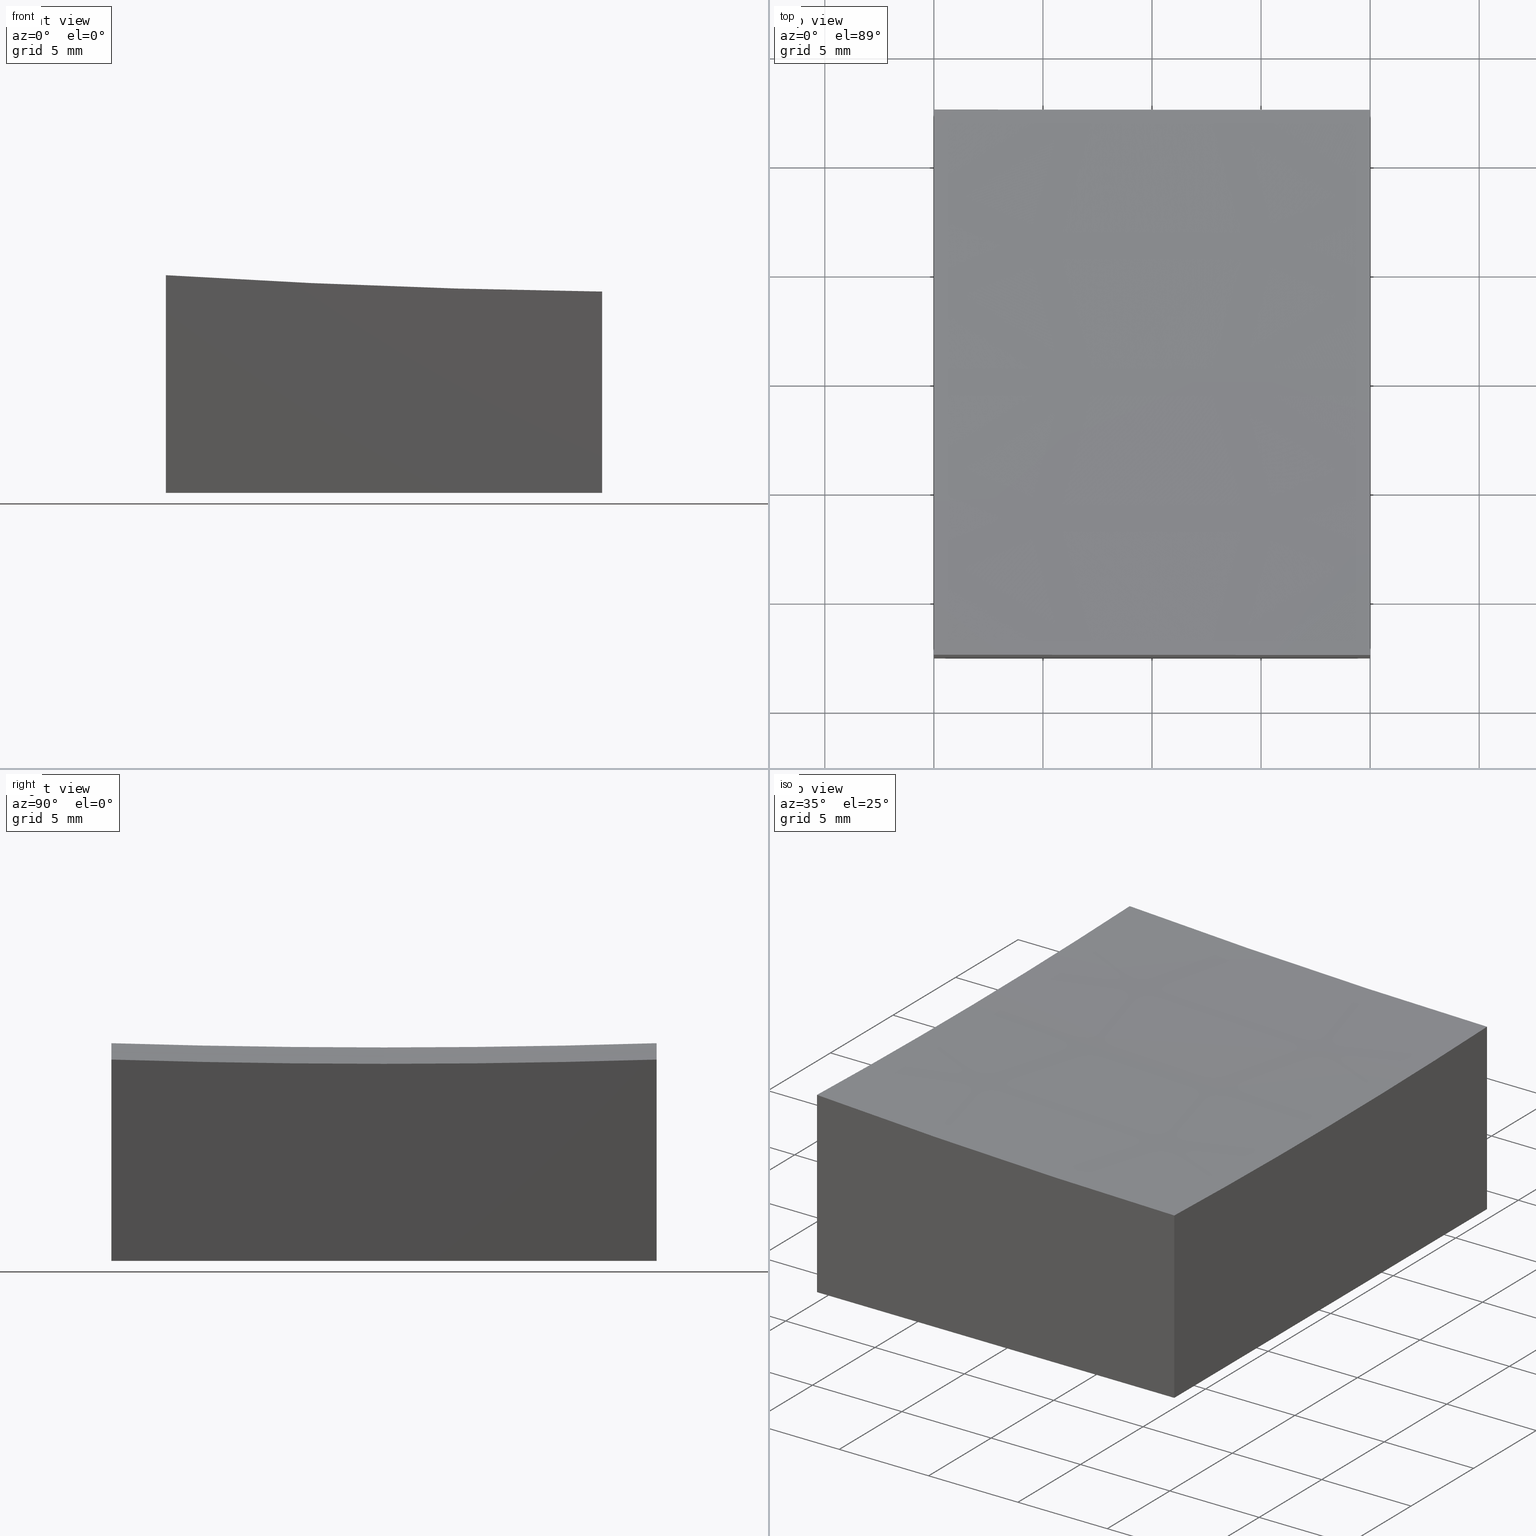
[diagram: canonical four-view strip — front | top / right | iso, engineering-drawing reading convention]
A machine part, canonical four-view strip (front | top / right | iso — engineering-drawing reading convention). The complete STEP part file that produces these views, byte-faithful:
ISO-10303-21;
HEADER;
FILE_DESCRIPTION (( 'STEP AP203' ),
    '1' );
FILE_NAME ('270647.step',
    '2024-12-24T02:22:16',
    ( '' ),
    ( '' ),
    'SwSTEP 2.0',
    'SolidWorks 2020',
    '' );
FILE_SCHEMA (( 'CONFIG_CONTROL_DESIGN' ));
ENDSEC;

DATA;
#1 = PLANE ( 'NONE',  #266 ) ;
#2 = CARTESIAN_POINT ( 'NONE',  ( 10.00000000000000178, 12.50000000000000000, 10.00000000000000000 ) ) ;
#3 = ORIENTED_EDGE ( 'NONE', *, *, #108, .T. ) ;
#4 = CARTESIAN_POINT ( 'NONE',  ( -9.999999999999996447, 0.000000000000000000, -0.2179855667827079735 ) ) ;
#5 = CC_DESIGN_APPROVAL ( #21, ( #133 ) ) ;
#6 = VERTEX_POINT ( 'NONE', #4 ) ;
#7 = AXIS2_PLACEMENT_3D ( 'NONE', #65, #240, #44 ) ;
#8 = PERSON ( 'δָ��', 'δָ��', 'δָ��', ('δָ��'), ('δָ��'), ('δָ��') ) ;
#9 = CC_DESIGN_PERSON_AND_ORGANIZATION_ASSIGNMENT ( #200, #33, ( #133 ) ) ;
#10 =( LENGTH_UNIT ( ) NAMED_UNIT ( * ) SI_UNIT ( .MILLI., .METRE. ) );
#11 = COORDINATED_UNIVERSAL_TIME_OFFSET ( 8, 0, .AHEAD. ) ;
#12 = CARTESIAN_POINT ( 'NONE',  ( 10.00000000000000178, 12.50000000000000000, -10.00000000000000000 ) ) ;
#13 = CALENDAR_DATE ( 2024, 24, 12 ) ;
#14 = APPROVAL_DATE_TIME ( #139, #28 ) ;
#15 = AXIS2_PLACEMENT_3D ( 'NONE', #214, #90, #47 ) ;
#16 = AXIS2_PLACEMENT_3D ( 'NONE', #237, #120, #207 ) ;
#17 = FACE_OUTER_BOUND ( 'NONE', #113, .T. ) ;
#18 = DIRECTION ( 'NONE',  ( 0.000000000000000000, 0.000000000000000000, 1.000000000000000000 ) ) ;
#19 = EDGE_CURVE ( 'NONE', #112, #48, #201, .T. ) ;
#20 = DIRECTION ( 'NONE',  ( -0.000000000000000000, -0.000000000000000000, -1.000000000000000000 ) ) ;
#21 = APPROVAL ( #100, 'δָ��' ) ;
#22 = DIRECTION ( 'NONE',  ( -1.000000000000000000, -1.735571129814823690E-16, 0.000000000000000000 ) ) ;
#23 = DIRECTION ( 'NONE',  ( 0.000000000000000000, -1.000000000000000000, 0.000000000000000000 ) ) ;
#24 = CARTESIAN_POINT ( 'NONE',  ( 10.00000000000000178, 0.000000000000000000, -0.9687487792014171095 ) ) ;
#25 = AXIS2_PLACEMENT_3D ( 'NONE', #235, #36, #66 ) ;
#26 = ORIENTED_EDGE ( 'NONE', *, *, #19, .T. ) ;
#27 = ORIENTED_EDGE ( 'NONE', *, *, #245, .F. ) ;
#28 = APPROVAL ( #121, 'δָ��' ) ;
#29 = VECTOR ( 'NONE', #84, 1000.000000000000000 ) ;
#30 = APPROVAL_PERSON_ORGANIZATION ( #78, #59, #53 ) ;
#31 = AXIS2_PLACEMENT_3D ( 'NONE', #92, #23, #238 ) ;
#32 = DIRECTION ( 'NONE',  ( -0.000000000000000000, -1.000000000000000000, -0.000000000000000000 ) ) ;
#33 = PERSON_AND_ORGANIZATION_ROLE ( 'classification_officer' ) ;
#34 = PERSON_AND_ORGANIZATION_ROLE ( 'design_owner' ) ;
#35 = CARTESIAN_POINT ( 'NONE',  ( 15.00000000000005151, 0.000000000000000000, 399.0000000000000000 ) ) ;
#36 = DIRECTION ( 'NONE',  ( -1.000000000000000000, 0.000000000000000000, 0.000000000000000000 ) ) ;
#37 = CC_DESIGN_PERSON_AND_ORGANIZATION_ASSIGNMENT ( #179, #99, ( #172 ) ) ;
#38 = AXIS2_PLACEMENT_3D ( 'NONE', #35, #40, #204 ) ;
#39 = DIRECTION ( 'NONE',  ( 0.000000000000000000, -0.000000000000000000, 1.000000000000000000 ) ) ;
#40 = DIRECTION ( 'NONE',  ( 0.000000000000000000, 1.000000000000000000, -0.000000000000000000 ) ) ;
#41 = DIRECTION ( 'NONE',  ( 1.000000000000000000, 0.000000000000000000, 0.000000000000000000 ) ) ;
#42 = ORIENTED_EDGE ( 'NONE', *, *, #267, .F. ) ;
#43 = DIRECTION ( 'NONE',  ( 0.000000000000000000, 0.000000000000000000, -1.000000000000000000 ) ) ;
#44 = DIRECTION ( 'NONE',  ( 0.000000000000000000, 0.000000000000000000, 1.000000000000000000 ) ) ;
#45 = AXIS2_PLACEMENT_3D ( 'NONE', #88, #39, #276 ) ;
#46 = ORIENTED_EDGE ( 'NONE', *, *, #94, .F. ) ;
#47 = DIRECTION ( 'NONE',  ( 1.000000000000000000, 1.735571129814823690E-16, 0.000000000000000000 ) ) ;
#48 = VERTEX_POINT ( 'NONE', #196 ) ;
#49 = EDGE_CURVE ( 'NONE', #6, #194, #228, .T. ) ;
#50 = LOCAL_TIME ( 10, 22, 16.00000000000000000, #11 ) ;
#51 = CLOSED_SHELL ( 'NONE', ( #152, #125, #70, #75, #105, #91, #221 ) ) ;
#52 = VECTOR ( 'NONE', #32, 1000.000000000000000 ) ;
#53 = APPROVAL_ROLE ( '' ) ;
#54 = CARTESIAN_POINT ( 'NONE',  ( -9.999999999999998224, -12.50000000000000355, -10.00000000000000000 ) ) ;
#55 = DIRECTION ( 'NONE',  ( -1.000000000000000000, 0.000000000000000000, 0.000000000000000000 ) ) ;
#56 = AXIS2_PLACEMENT_3D ( 'NONE', #255, #239, #86 ) ;
#57 = COORDINATED_UNIVERSAL_TIME_OFFSET ( 8, 0, .AHEAD. ) ;
#58 = CARTESIAN_POINT ( 'NONE',  ( 10.00000000000000178, -12.50000000000000000, -10.00000000000000000 ) ) ;
#59 = APPROVAL ( #76, 'δָ��' ) ;
#60 = LINE ( 'NONE', #2, #29 ) ;
#61 = DIRECTION ( 'NONE',  ( 0.000000000000000000, 0.000000000000000000, -1.000000000000000000 ) ) ;
#62 = DIRECTION ( 'NONE',  ( 0.000000000000000000, 1.000000000000000000, 0.000000000000000000 ) ) ;
#63 = ORIENTED_EDGE ( 'NONE', *, *, #223, .F. ) ;
#64 = DIRECTION ( 'NONE',  ( 1.000000000000000000, 1.734723475976807094E-16, 0.000000000000000000 ) ) ;
#65 = CARTESIAN_POINT ( 'NONE',  ( 10.00000000000000178, 0.000000000000000000, 399.0000000000000000 ) ) ;
#66 = DIRECTION ( 'NONE',  ( 0.000000000000000000, 0.000000000000000000, 1.000000000000000000 ) ) ;
#67 = EDGE_LOOP ( 'NONE', ( #132, #171, #222, #264, #219 ) ) ;
#68 = MANIFOLD_SOLID_BREP ( '�г�-��ת8', #51 ) ;
#69 = ORIENTED_EDGE ( 'NONE', *, *, #191, .F. ) ;
#70 = ADVANCED_FACE ( 'NONE', ( #190 ), #1, .F. ) ;
#71 = ORIENTED_EDGE ( 'NONE', *, *, #98, .T. ) ;
#72 = CIRCLE ( 'NONE', #7, 399.9687487792014053 ) ;
#73 = LOCAL_TIME ( 10, 22, 16.00000000000000000, #232 ) ;
#74 = EDGE_CURVE ( 'NONE', #48, #194, #72, .T. ) ;
#75 = ADVANCED_FACE ( 'NONE', ( #17 ), #261, .F. ) ;
#76 = APPROVAL_STATUS ( 'not_yet_approved' ) ;
#77 = CARTESIAN_POINT ( 'NONE',  ( 10.00000000000000178, 0.000000000000000000, 399.0000000000000000 ) ) ;
#78 = PERSON_AND_ORGANIZATION ( #8, #209 ) ;
#79 = PRODUCT_RELATED_PRODUCT_CATEGORY ( 'detail', '', ( #247 ) ) ;
#80 = LINE ( 'NONE', #54, #52 ) ;
#81 = EDGE_LOOP ( 'NONE', ( #241, #27, #242, #42 ) ) ;
#82 = CARTESIAN_POINT ( 'NONE',  ( 10.00000000000000178, -12.50000000000000000, -0.7733733004237630659 ) ) ;
#83 = DIRECTION ( 'NONE',  ( -0.000000000000000000, -0.000000000000000000, -1.000000000000000000 ) ) ;
#84 = DIRECTION ( 'NONE',  ( -0.000000000000000000, -0.000000000000000000, -1.000000000000000000 ) ) ;
#85 = APPROVAL_PERSON_ORGANIZATION ( #141, #21, #153 ) ;
#86 = DIRECTION ( 'NONE',  ( -1.000000000000000000, 0.000000000000000000, 1.387778780781445676E-16 ) ) ;
#87 = CARTESIAN_POINT ( 'NONE',  ( 10.00000000000000178, -12.50000000000000000, 10.00000000000000000 ) ) ;
#88 = CARTESIAN_POINT ( 'NONE',  ( 0.000000000000000000, 0.000000000000000000, -10.00000000000000000 ) ) ;
#89 = ORIENTED_EDGE ( 'NONE', *, *, #267, .T. ) ;
#90 = DIRECTION ( 'NONE',  ( 1.734723475976807094E-16, -1.000000000000000000, 0.000000000000000000 ) ) ;
#91 = ADVANCED_FACE ( 'NONE', ( #233 ), #124, .F. ) ;
#92 = CARTESIAN_POINT ( 'NONE',  ( 15.00000000000005151, 0.000000000000000000, 399.0000000000000000 ) ) ;
#93 = EDGE_CURVE ( 'NONE', #6, #112, #156, .T. ) ;
#94 = EDGE_CURVE ( 'NONE', #220, #195, #148, .T. ) ;
#95 = AXIS2_PLACEMENT_3D ( 'NONE', #77, #55, #18 ) ;
#96 = DATE_TIME_ROLE ( 'classification_date' ) ;
#97 = CC_DESIGN_SECURITY_CLASSIFICATION ( #133, ( #172 ) ) ;
#98 = EDGE_CURVE ( 'NONE', #48, #243, #60, .T. ) ;
#99 = PERSON_AND_ORGANIZATION_ROLE ( 'design_supplier' ) ;
#100 = APPROVAL_STATUS ( 'not_yet_approved' ) ;
#101 = ORIENTED_EDGE ( 'NONE', *, *, #74, .T. ) ;
#102 = APPLICATION_PROTOCOL_DEFINITION ( 'international standard', 'config_control_design', 1994, #123 ) ;
#103 =( NAMED_UNIT ( * ) PLANE_ANGLE_UNIT ( ) SI_UNIT ( $, .RADIAN. ) );
#104 = CARTESIAN_POINT ( 'NONE',  ( 10.00000000000000178, -12.50000000000000000, -10.00000000000000000 ) ) ;
#105 = ADVANCED_FACE ( 'NONE', ( #162 ), #127, .F. ) ;
#106 = LINE ( 'NONE', #188, #229 ) ;
#107 = ORIENTED_EDGE ( 'NONE', *, *, #94, .T. ) ;
#108 = EDGE_CURVE ( 'NONE', #195, #243, #122, .T. ) ;
#109 = APPROVAL_PERSON_ORGANIZATION ( #161, #28, #272 ) ;
#110 = LINE ( 'NONE', #165, #218 ) ;
#111 = EDGE_LOOP ( 'NONE', ( #265, #129, #149, #169 ) ) ;
#112 = VERTEX_POINT ( 'NONE', #146 ) ;
#113 = EDGE_LOOP ( 'NONE', ( #151, #101, #89, #168, #3 ) ) ;
#114 = VECTOR ( 'NONE', #83, 1000.000000000000000 ) ;
#115 = CC_DESIGN_PERSON_AND_ORGANIZATION_ASSIGNMENT ( #182, #34, ( #247 ) ) ;
#116 = LINE ( 'NONE', #210, #114 ) ;
#117 = SHAPE_DEFINITION_REPRESENTATION ( #203, #251 ) ;
#118 = CALENDAR_DATE ( 2024, 24, 12 ) ;
#119 = FACE_OUTER_BOUND ( 'NONE', #81, .T. ) ;
#120 = DIRECTION ( 'NONE',  ( 1.000000000000000000, 0.000000000000000000, 0.000000000000000000 ) ) ;
#121 = APPROVAL_STATUS ( 'not_yet_approved' ) ;
#122 = LINE ( 'NONE', #252, #208 ) ;
#123 = APPLICATION_CONTEXT ( 'configuration controlled 3d designs of mechanical parts and assemblies' ) ;
#124 = PLANE ( 'NONE',  #45 ) ;
#125 = ADVANCED_FACE ( 'NONE', ( #140 ), #257, .F. ) ;
#126 = VERTEX_POINT ( 'NONE', #82 ) ;
#127 = PLANE ( 'NONE',  #170 ) ;
#128 = EDGE_LOOP ( 'NONE', ( #150, #147, #217, #107 ) ) ;
#129 = ORIENTED_EDGE ( 'NONE', *, *, #49, .T. ) ;
#130 = CC_DESIGN_PERSON_AND_ORGANIZATION_ASSIGNMENT ( #230, #246, ( #172 ) ) ;
#131 = VERTEX_POINT ( 'NONE', #144 ) ;
#132 = ORIENTED_EDGE ( 'NONE', *, *, #138, .F. ) ;
#133 = SECURITY_CLASSIFICATION ( '', '', #155 ) ;
#134 = AXIS2_PLACEMENT_3D ( 'NONE', #256, #137, #61 ) ;
#135 = EDGE_CURVE ( 'NONE', #126, #131, #249, .T. ) ;
#136 = DATE_AND_TIME ( #270, #176 ) ;
#137 = DIRECTION ( 'NONE',  ( 1.000000000000000000, 0.000000000000000000, 0.000000000000000000 ) ) ;
#138 = EDGE_CURVE ( 'NONE', #131, #220, #106, .T. ) ;
#139 = DATE_AND_TIME ( #236, #268 ) ;
#140 = FACE_OUTER_BOUND ( 'NONE', #67, .T. ) ;
#141 = PERSON_AND_ORGANIZATION ( #8, #209 ) ;
#142 = APPLICATION_PROTOCOL_DEFINITION ( 'international standard', 'config_control_design', 1994, #253 ) ;
#143 = DIRECTION ( 'NONE',  ( -1.000000000000000000, -1.734723475976807094E-16, 0.000000000000000000 ) ) ;
#144 = CARTESIAN_POINT ( 'NONE',  ( -9.999999999999996447, -12.50000000000000355, -0.02224248780913207213 ) ) ;
#145 = ORIENTED_EDGE ( 'NONE', *, *, #174, .T. ) ;
#146 = CARTESIAN_POINT ( 'NONE',  ( -10.00000000000000000, 12.49999999999999645, -0.02224248780913207213 ) ) ;
#147 = ORIENTED_EDGE ( 'NONE', *, *, #135, .T. ) ;
#148 = LINE ( 'NONE', #58, #198 ) ;
#149 = ORIENTED_EDGE ( 'NONE', *, *, #74, .F. ) ;
#150 = ORIENTED_EDGE ( 'NONE', *, *, #259, .F. ) ;
#151 = ORIENTED_EDGE ( 'NONE', *, *, #98, .F. ) ;
#152 = ADVANCED_FACE ( 'NONE', ( #258 ), #160, .F. ) ;
#153 = APPROVAL_ROLE ( '' ) ;
#154 = DATE_AND_TIME ( #118, #50 ) ;
#155 = SECURITY_CLASSIFICATION_LEVEL ( 'unclassified' ) ;
#156 = CIRCLE ( 'NONE', #175, 399.2179855667827155 ) ;
#157 = DIRECTION ( 'NONE',  ( 1.734723475976807094E-16, -1.000000000000000000, 0.000000000000000000 ) ) ;
#158 = DATE_AND_TIME ( #271, #73 ) ;
#159 =( NAMED_UNIT ( * ) SI_UNIT ( $, .STERADIAN. ) SOLID_ANGLE_UNIT ( ) );
#160 = SPHERICAL_SURFACE ( 'NONE', #56, 399.9999999999999432 ) ;
#161 = PERSON_AND_ORGANIZATION ( #8, #209 ) ;
#162 = FACE_OUTER_BOUND ( 'NONE', #163, .T. ) ;
#163 = EDGE_LOOP ( 'NONE', ( #69, #26, #71, #145 ) ) ;
#164 = CIRCLE ( 'NONE', #134, 399.2179855667827155 ) ;
#165 = CARTESIAN_POINT ( 'NONE',  ( -9.999999999999998224, 12.49999999999999645, 10.00000000000000000 ) ) ;
#166 = DIRECTION ( 'NONE',  ( -1.734723475976807094E-16, 1.000000000000000000, 0.000000000000000000 ) ) ;
#167 = CARTESIAN_POINT ( 'NONE',  ( 10.00000000000000178, 12.50000000000000000, 10.00000000000000000 ) ) ;
#168 = ORIENTED_EDGE ( 'NONE', *, *, #259, .T. ) ;
#169 = ORIENTED_EDGE ( 'NONE', *, *, #19, .F. ) ;
#170 = AXIS2_PLACEMENT_3D ( 'NONE', #167, #157, #64 ) ;
#171 = ORIENTED_EDGE ( 'NONE', *, *, #245, .T. ) ;
#172 = PRODUCT_DEFINITION_FORMATION_WITH_SPECIFIED_SOURCE ( '�κ�', '', #247, .NOT_KNOWN. ) ;
#173 = ORIENTED_EDGE ( 'NONE', *, *, #174, .F. ) ;
#174 = EDGE_CURVE ( 'NONE', #243, #193, #277, .T. ) ;
#175 = AXIS2_PLACEMENT_3D ( 'NONE', #185, #41, #43 ) ;
#176 = LOCAL_TIME ( 10, 22, 16.00000000000000000, #177 ) ;
#177 = COORDINATED_UNIVERSAL_TIME_OFFSET ( 8, 0, .AHEAD. ) ;
#178 = CC_DESIGN_PERSON_AND_ORGANIZATION_ASSIGNMENT ( #184, #274, ( #225 ) ) ;
#179 = PERSON_AND_ORGANIZATION ( #8, #209 ) ;
#180 = DIRECTION ( 'NONE',  ( 0.000000000000000000, 0.000000000000000000, 1.000000000000000000 ) ) ;
#181 = APPROVAL_DATE_TIME ( #136, #21 ) ;
#182 = PERSON_AND_ORGANIZATION ( #8, #209 ) ;
#183 = VECTOR ( 'NONE', #143, 1000.000000000000000 ) ;
#184 = PERSON_AND_ORGANIZATION ( #8, #209 ) ;
#185 = CARTESIAN_POINT ( 'NONE',  ( -9.999999999999998224, 0.000000000000000000, 399.0000000000000000 ) ) ;
#186 = CC_DESIGN_DATE_AND_TIME_ASSIGNMENT ( #226, #96, ( #133 ) ) ;
#187 = DIRECTION ( 'NONE',  ( 1.000000000000000000, 1.734723475976807094E-16, -0.000000000000000000 ) ) ;
#188 = CARTESIAN_POINT ( 'NONE',  ( -9.999999999999998224, -12.50000000000000355, 10.00000000000000000 ) ) ;
#189 = CC_DESIGN_APPROVAL ( #28, ( #225 ) ) ;
#190 = FACE_OUTER_BOUND ( 'NONE', #128, .T. ) ;
#191 = EDGE_CURVE ( 'NONE', #112, #193, #110, .T. ) ;
#192 = CARTESIAN_POINT ( 'NONE',  ( 10.00000000000000178, 12.50000000000000000, -10.00000000000000000 ) ) ;
#193 = VERTEX_POINT ( 'NONE', #216 ) ;
#194 = VERTEX_POINT ( 'NONE', #24 ) ;
#195 = VERTEX_POINT ( 'NONE', #104 ) ;
#196 = CARTESIAN_POINT ( 'NONE',  ( 10.00000000000000178, 12.50000000000000000, -0.7733733004237630659 ) ) ;
#197 = CIRCLE ( 'NONE', #95, 399.9687487792014053 ) ;
#198 = VECTOR ( 'NONE', #187, 1000.000000000000000 ) ;
#199 = AXIS2_PLACEMENT_3D ( 'NONE', #206, #180, #234 ) ;
#200 = PERSON_AND_ORGANIZATION ( #8, #209 ) ;
#201 = CIRCLE ( 'NONE', #15, 399.8046397929868476 ) ;
#202 = LOCAL_TIME ( 10, 22, 16.00000000000000000, #250 ) ;
#203 = PRODUCT_DEFINITION_SHAPE ( 'NONE', 'NONE',  #225 ) ;
#204 = DIRECTION ( 'NONE',  ( -1.000000000000000000, 0.000000000000000000, 1.387778780781445676E-16 ) ) ;
#205 = DATE_TIME_ROLE ( 'creation_date' ) ;
#206 = CARTESIAN_POINT ( 'NONE',  ( 0.000000000000000000, 0.000000000000000000, 0.000000000000000000 ) ) ;
#207 = DIRECTION ( 'NONE',  ( 0.000000000000000000, 0.000000000000000000, -1.000000000000000000 ) ) ;
#208 = VECTOR ( 'NONE', #62, 1000.000000000000000 ) ;
#209 = ORGANIZATION ( 'δָ��', 'δָ��', '' ) ;
#210 = CARTESIAN_POINT ( 'NONE',  ( 10.00000000000000178, -12.50000000000000000, 10.00000000000000000 ) ) ;
#211 = DIRECTION ( 'NONE',  ( -0.000000000000000000, -0.000000000000000000, -1.000000000000000000 ) ) ;
#212 = ORIENTED_EDGE ( 'NONE', *, *, #108, .F. ) ;
#213 = CARTESIAN_POINT ( 'NONE',  ( 15.00000000000005329, -12.49999999999999822, 399.0000000000000000 ) ) ;
#214 = CARTESIAN_POINT ( 'NONE',  ( 15.00000000000004974, 12.50000000000000178, 399.0000000000000000 ) ) ;
#215 = UNCERTAINTY_MEASURE_WITH_UNIT (LENGTH_MEASURE( 1.000000000000000082E-05 ), #10, 'distance_accuracy_value', 'NONE');
#216 = CARTESIAN_POINT ( 'NONE',  ( -9.999999999999998224, 12.49999999999999645, -10.00000000000000000 ) ) ;
#217 = ORIENTED_EDGE ( 'NONE', *, *, #138, .T. ) ;
#218 = VECTOR ( 'NONE', #20, 1000.000000000000000 ) ;
#219 = ORIENTED_EDGE ( 'NONE', *, *, #223, .T. ) ;
#220 = VERTEX_POINT ( 'NONE', #248 ) ;
#221 = ADVANCED_FACE ( 'NONE', ( #119 ), #227, .F. ) ;
#222 = ORIENTED_EDGE ( 'NONE', *, *, #93, .T. ) ;
#223 = EDGE_CURVE ( 'NONE', #193, #220, #80, .T. ) ;
#224 = AXIS2_PLACEMENT_3D ( 'NONE', #213, #275, #22 ) ;
#225 = PRODUCT_DEFINITION ( 'δ֪', '', #172, #254 ) ;
#226 = DATE_AND_TIME ( #13, #202 ) ;
#227 = SPHERICAL_SURFACE ( 'NONE', #38, 399.9999999999999432 ) ;
#228 = CIRCLE ( 'NONE', #31, 399.9999999999999432 ) ;
#229 = VECTOR ( 'NONE', #211, 1000.000000000000000 ) ;
#230 = PERSON_AND_ORGANIZATION ( #8, #209 ) ;
#231 = MECHANICAL_CONTEXT ( 'NONE', #253, 'mechanical' ) ;
#232 = COORDINATED_UNIVERSAL_TIME_OFFSET ( 8, 0, .AHEAD. ) ;
#233 = FACE_OUTER_BOUND ( 'NONE', #262, .T. ) ;
#234 = DIRECTION ( 'NONE',  ( 1.000000000000000000, 0.000000000000000000, 0.000000000000000000 ) ) ;
#235 = CARTESIAN_POINT ( 'NONE',  ( 10.00000000000000178, -12.50000000000000000, 10.00000000000000000 ) ) ;
#236 = CALENDAR_DATE ( 2024, 24, 12 ) ;
#237 = CARTESIAN_POINT ( 'NONE',  ( -9.999999999999998224, -12.50000000000000355, 10.00000000000000000 ) ) ;
#238 = DIRECTION ( 'NONE',  ( 0.000000000000000000, 0.000000000000000000, -1.000000000000000000 ) ) ;
#239 = DIRECTION ( 'NONE',  ( 0.000000000000000000, 1.000000000000000000, -0.000000000000000000 ) ) ;
#240 = DIRECTION ( 'NONE',  ( -1.000000000000000000, 0.000000000000000000, 0.000000000000000000 ) ) ;
#241 = ORIENTED_EDGE ( 'NONE', *, *, #49, .F. ) ;
#242 = ORIENTED_EDGE ( 'NONE', *, *, #135, .F. ) ;
#243 = VERTEX_POINT ( 'NONE', #12 ) ;
#244 = CC_DESIGN_DATE_AND_TIME_ASSIGNMENT ( #158, #205, ( #225 ) ) ;
#245 = EDGE_CURVE ( 'NONE', #131, #6, #164, .T. ) ;
#246 = PERSON_AND_ORGANIZATION_ROLE ( 'creator' ) ;
#247 = PRODUCT ( '270647', '270647', '', ( #231 ) ) ;
#248 = CARTESIAN_POINT ( 'NONE',  ( -9.999999999999998224, -12.50000000000000355, -10.00000000000000000 ) ) ;
#249 = CIRCLE ( 'NONE', #224, 399.8046397929868476 ) ;
#250 = COORDINATED_UNIVERSAL_TIME_OFFSET ( 8, 0, .AHEAD. ) ;
#251 = ADVANCED_BREP_SHAPE_REPRESENTATION ( '270647', ( #68, #199 ), #273 ) ;
#252 = CARTESIAN_POINT ( 'NONE',  ( 10.00000000000000178, -12.50000000000000000, -10.00000000000000000 ) ) ;
#253 = APPLICATION_CONTEXT ( 'configuration controlled 3d designs of mechanical parts and assemblies' ) ;
#254 = DESIGN_CONTEXT ( 'detailed design', #123, 'design' ) ;
#255 = CARTESIAN_POINT ( 'NONE',  ( 15.00000000000005151, 0.000000000000000000, 399.0000000000000000 ) ) ;
#256 = CARTESIAN_POINT ( 'NONE',  ( -9.999999999999998224, 0.000000000000000000, 399.0000000000000000 ) ) ;
#257 = PLANE ( 'NONE',  #16 ) ;
#258 = FACE_OUTER_BOUND ( 'NONE', #111, .T. ) ;
#259 = EDGE_CURVE ( 'NONE', #126, #195, #116, .T. ) ;
#260 = DIRECTION ( 'NONE',  ( -1.000000000000000000, -1.734723475976807094E-16, 0.000000000000000000 ) ) ;
#261 = PLANE ( 'NONE',  #25 ) ;
#262 = EDGE_LOOP ( 'NONE', ( #63, #173, #212, #46 ) ) ;
#263 = CC_DESIGN_APPROVAL ( #59, ( #172 ) ) ;
#264 = ORIENTED_EDGE ( 'NONE', *, *, #191, .T. ) ;
#265 = ORIENTED_EDGE ( 'NONE', *, *, #93, .F. ) ;
#266 = AXIS2_PLACEMENT_3D ( 'NONE', #87, #166, #260 ) ;
#267 = EDGE_CURVE ( 'NONE', #194, #126, #197, .T. ) ;
#268 = LOCAL_TIME ( 10, 22, 16.00000000000000000, #57 ) ;
#269 = APPROVAL_DATE_TIME ( #154, #59 ) ;
#270 = CALENDAR_DATE ( 2024, 24, 12 ) ;
#271 = CALENDAR_DATE ( 2024, 24, 12 ) ;
#272 = APPROVAL_ROLE ( '' ) ;
#273 =( GEOMETRIC_REPRESENTATION_CONTEXT ( 3 ) GLOBAL_UNCERTAINTY_ASSIGNED_CONTEXT ( ( #215 ) ) GLOBAL_UNIT_ASSIGNED_CONTEXT ( ( #10, #103, #159 ) ) REPRESENTATION_CONTEXT ( 'NONE', 'WORKASPACE' ) );
#274 = PERSON_AND_ORGANIZATION_ROLE ( 'creator' ) ;
#275 = DIRECTION ( 'NONE',  ( -1.734723475976807094E-16, 1.000000000000000000, 0.000000000000000000 ) ) ;
#276 = DIRECTION ( 'NONE',  ( 1.000000000000000000, 0.000000000000000000, -0.000000000000000000 ) ) ;
#277 = LINE ( 'NONE', #192, #183 ) ;
ENDSEC;
END-ISO-10303-21;
